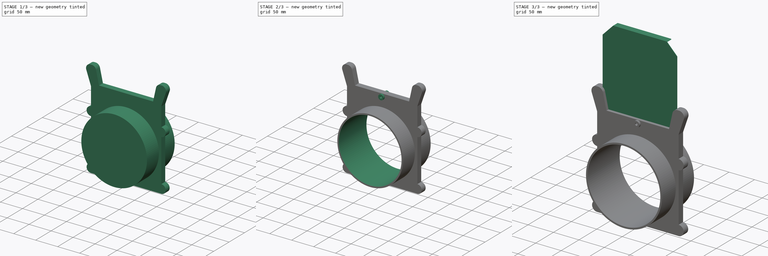
[diagram: build sequence overview — one tinted view per stage of 3, left to right]
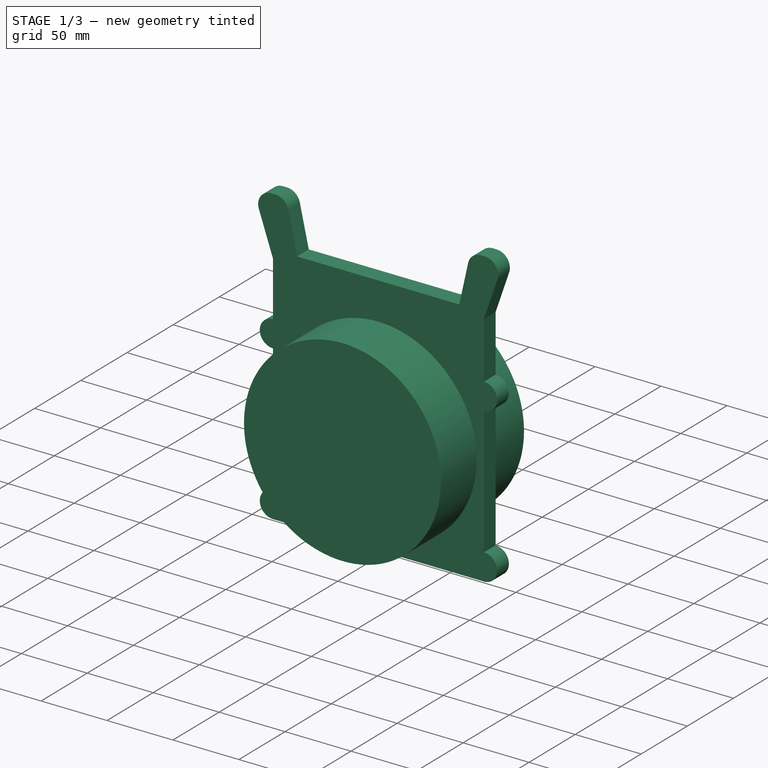
[diagram: stage 1 of 3 — iso view after this stage's code; geometry added in this stage tinted green]
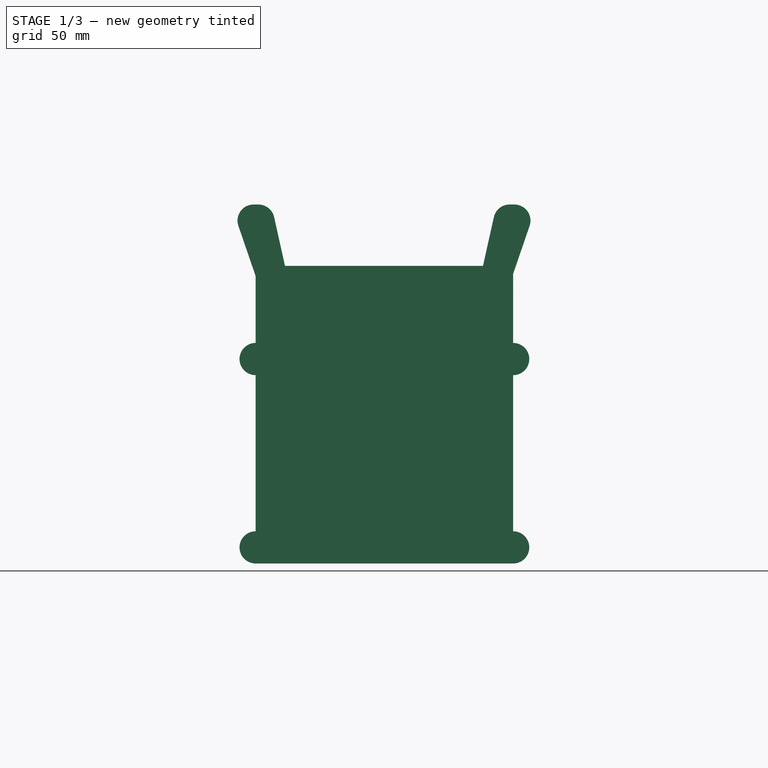
[diagram: stage 1 of 3 — front view after this stage's code; geometry added in this stage tinted green]
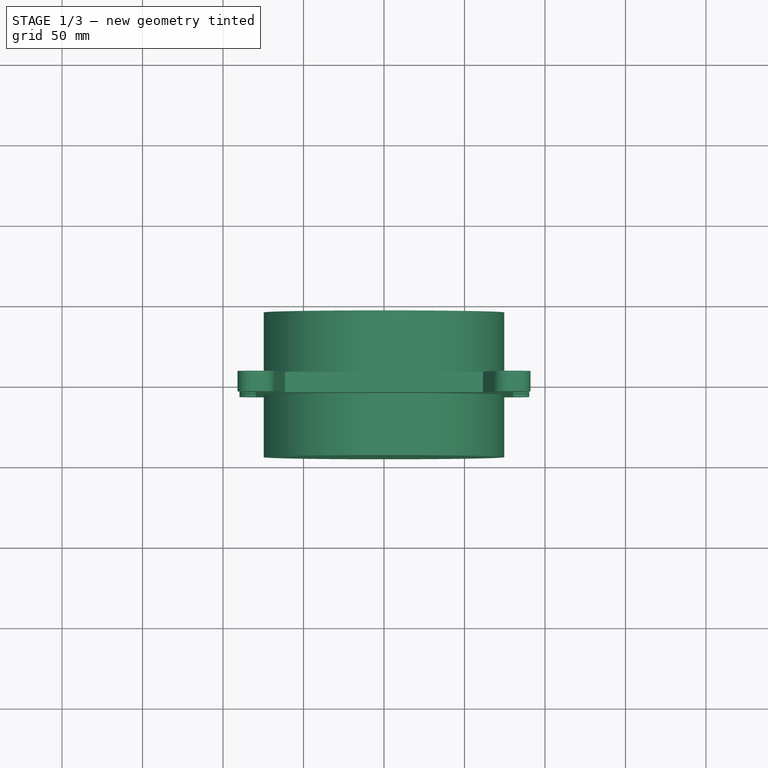
[diagram: stage 1 of 3 — top view after this stage's code; geometry added in this stage tinted green]
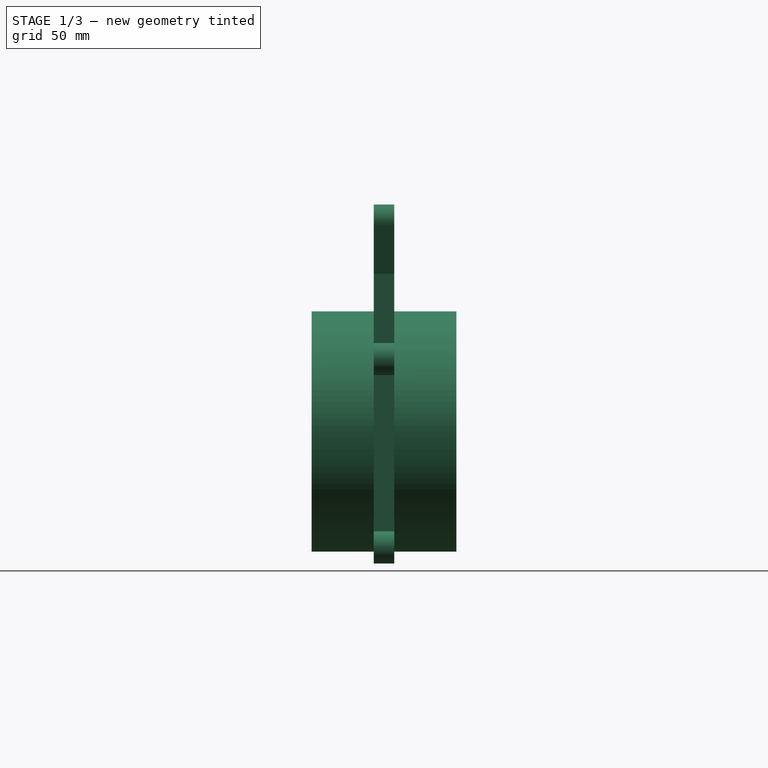
[diagram: stage 1 of 3 — right view after this stage's code; geometry added in this stage tinted green]
FCSTD DOCUMENT  (FreeCAD 1.1R40971 (Git))
Label: blastgate
License: All rights reserved
LicenseURL: http://en.wikipedia.org/wiki/All_rights_reserved
objects: Sketcher::SketchObject×7, PartDesign::Pad×4, PartDesign::Pocket×3, PartDesign::Body×1, App::Point×1
note: 36 computed .brp shape members not serialized (recipe doc carries the construction recipe); baked Part::Feature solids carry a one-line shape summary decoded from their .brp

FEATURE [Sketcher::SketchObject] Sketch  label="sbody"
  ArcFitTolerance = 0
  AttachmentSupport = -> [XZ_Plane]
  ExternalTypes = [0]
  FullyConstrained = true
  MakeInternals = false
  MapMode = 5
  Placement = pos=(0,0,0) rot=(1,0,0;1.5708rad)
  sketch-geometry (27):
    g0: LineSegment StartX=-68.2548 StartY=133.177 StartZ=0 EndX=-61.5 EndY=102.9 EndZ=0
    g1: LineSegment StartX=-61.5 StartY=102.9 StartZ=0 EndX=61.5 EndY=102.9 EndZ=0
    g2: LineSegment StartX=61.5 StartY=102.9 StartZ=0 EndX=68.2548 EndY=133.177 EndZ=0
    g3: LineSegment StartX=78.0149 StartY=141 StartZ=0 EndX=80.9974 EndY=141 EndZ=0
    g4: LineSegment StartX=90.4563 StartY=127.755 StartZ=0 EndX=80.2487 EndY=98 EndZ=0
    g5: LineSegment StartX=80.2487 StartY=98 StartZ=0 EndX=80.2487 EndY=55 EndZ=0
    g6: LineSegment StartX=80.2487 StartY=-82 StartZ=0 EndX=-79.7513 EndY=-82 EndZ=0
    g7: LineSegment StartX=-79.7513 StartY=-62 StartZ=0 EndX=-79.7513 EndY=35 EndZ=0
    g8: LineSegment StartX=-79.7513 StartY=96.55 StartZ=0 EndX=-90.4563 EndY=127.755 EndZ=0
    g9: LineSegment StartX=-80.9974 StartY=141 StartZ=0 EndX=-78.0149 EndY=141 EndZ=0
    g10: Circle [constr] CenterX=0 CenterY=0 CenterZ=0 NormalX=0 NormalY=0 NormalZ=1 AngleXU=0 Radius=71
    g11: GeomPoint [constr] X=0 Y=-71 Z=0
    g12: ArcOfCircle CenterX=-79.7513 CenterY=-72 CenterZ=0 NormalX=0 NormalY=0 NormalZ=1 AngleXU=0 Radius=10 StartAngle=1.5708 EndAngle=4.71239
    g13: ArcOfCircle CenterX=80.2487 CenterY=-72 CenterZ=0 NormalX=0 NormalY=0 NormalZ=1 AngleXU=0 Radius=10 StartAngle=4.71239 EndAngle=7.85398
    g14: ArcOfCircle CenterX=-79.7513 CenterY=45 CenterZ=0 NormalX=0 NormalY=0 NormalZ=1 AngleXU=0 Radius=10 StartAngle=1.5708 EndAngle=4.71239
    g15: ArcOfCircle CenterX=80.2487 CenterY=45 CenterZ=0 NormalX=0 NormalY=0 NormalZ=1 AngleXU=0 Radius=10 StartAngle=4.71239 EndAngle=7.85398
    g16: LineSegment StartX=80.2487 StartY=35 StartZ=0 EndX=80.2487 EndY=-62 EndZ=0
    g17: LineSegment StartX=-79.7513 StartY=55 StartZ=0 EndX=-79.7513 EndY=96.55 EndZ=0
    g18: ArcOfCircle CenterX=-80.9974 CenterY=131 CenterZ=0 NormalX=0 NormalY=0 NormalZ=1 AngleXU=0 Radius=10 StartAngle=1.5708 EndAngle=3.47206
    g19: GeomPoint [constr] X=-95 Y=141 Z=0
    g20: ArcOfCircle CenterX=80.9974 CenterY=131 CenterZ=0 NormalX=0 NormalY=0 NormalZ=1 AngleXU=0 Radius=10 StartAngle=5.95271 EndAngle=7.85398
    g21: GeomPoint [constr] X=95 Y=141 Z=0
    g22: ArcOfCircle CenterX=-78.0149 CenterY=131 CenterZ=0 NormalX=0 NormalY=0 NormalZ=1 AngleXU=0 Radius=10 StartAngle=0.219503 EndAngle=1.5708
    g23: GeomPoint [constr] X=-70 Y=141 Z=0
    g24: ArcOfCircle CenterX=78.0149 CenterY=131 CenterZ=0 NormalX=0 NormalY=0 NormalZ=1 AngleXU=0 Radius=10 StartAngle=1.5708 EndAngle=2.92209
    g25: GeomPoint [constr] X=70 Y=141 Z=0
    g26: Circle [constr] CenterX=0 CenterY=0 CenterZ=0 NormalX=0 NormalY=0 NormalZ=1 AngleXU=0 Radius=74.6125
  constraints (69):
    c: Coincident(g0,g1)
    c: Coincident(g1,g2)
    c: Horizontal(g3)
    c: Coincident(g4,g5)
    c: Vertical(g5)
    c: Vertical(g7)
    c: Coincident(g17,g8)
    c: Diameter(g10) = 142
    c: Coincident(g10,g-1)
    c: DistanceX(g6,g6) = 160
    c: DistanceY(g6,g23) = 223
    c: Horizontal(g9)
    c: DistanceX(g23,g25) = 140
    c: Symmetric(g25,g23,g-2)
    c: DistanceY(g0,g23) = 38.1
    c: DistanceX(g19,g21) = 190
    c: PointOnObject(g11,g10)
    c: PointOnObject(g11,g-2)
    c: DistanceY(g6,g11) = 11
    c: DistanceY(g6,g4) = 180
    c: Symmetric(g1,g0,g-2)
    c: Diameter(g12) = 20
    c: Equal(g13,g12)
    c: PointOnObject(g14,g7)
    c: PointOnObject(g15,g5)
    c: Equal(g12,g14)
    c: Equal(g14,g15)
    c: DistanceY(g12,g14) = 117
    c: Tangent(g12,g6) = 1.5708
    c: Coincident(g7,g12)
    c: Tangent(g13,g6) = 1.5708
    c: Coincident(g16,g13)
    c: Coincident(g5,g15)
    c: Coincident(g16,g15)
    c: Coincident(g14,g7)
    c: Coincident(g14,g17)
    c: Horizontal(g15,g14)
    c: PointOnObject(g19,g8)
    c: PointOnObject(g19,g9)
    c: Tangent(g8,g18) = 1.5708
    c: Tangent(g9,g18) = 1.5708
    c: PointOnObject(g21,g4)
    c: PointOnObject(g21,g3)
    c: Tangent(g4,g20) = 1.5708
    c: Tangent(g3,g20) = 1.5708
    c: Equal(g20,g18)
    c: Radius(g20) = 10
    c: DistanceX(g1,g1) = 123
    c: PointOnObject(g23,g9)
    c: PointOnObject(g23,g0)
    c: Tangent(g9,g22) = 1.5708
    c: Tangent(g0,g22) = 1.5708
    c: PointOnObject(g25,g3)
    c: PointOnObject(g25,g2)
    c: Tangent(g3,g24) = 1.5708
    c: Tangent(g2,g24) = 1.5708
    c: Equal(g24,g20)
    c: Equal(g20,g22)
    c: DistanceY(g8,g9) = 44.45
    c: Symmetric(g8,g4,g-2)
    c: Horizontal(g6)
    c: Perpendicular(g13,g16)
    c: Perpendicular(g12,g7)
    c: Vertical(g17)
    c: PointOnObject(g14,g7)
    c: PointOnObject(g5,g16)
    c: Equal(g7,g16)
    c: Coincident(g26,g10)
    c: Diameter(g26) = 149.225
FEATURE [PartDesign::Pad] Pad
  Direction = (0,-1,2e-16)
  Length = 12.7
  Length2 = 10
  Midplane = true
  Placement = pos=(0,0,0) rot=(1,0,0;1.5708rad)
  Profile = -> Sketch
  ReferenceAxis = -> Sketch [N_Axis]
  Suppressed = false
  Type = 0
FEATURE [Sketcher::SketchObject] Sketch001  label="scollar"
  ArcFitTolerance = 0
  ExternalTypes = [0]
  FullyConstrained = true
  MakeInternals = false
  MapMode = 5
  Placement = pos=(0,0,0) rot=(1,0,0;1.5708rad)
  expr: Constraints[2] = 5.88 in
  sketch-geometry (2):
    g0: Circle [constr] CenterX=0 CenterY=0 CenterZ=0 NormalX=0 NormalY=0 NormalZ=1 AngleXU=0 Radius=71.4375
    g1: Circle CenterX=0 CenterY=0 CenterZ=0 NormalX=0 NormalY=0 NormalZ=1 AngleXU=0 Radius=74.676
  constraints (4):
    c: Coincident(g0,g-1)
    c: Coincident(g1,g0)
    c: Diameter(g1) = 149.352
    c: Diameter(g0) = 142.875
FEATURE [PartDesign::Pad] Pad001
  BaseFeature = -> Pad
  Direction = (0,-1,2e-16)
  Length = 89.916
  Length2 = 10
  Midplane = true
  Placement = pos=(0,0,0) rot=(1,0,0;1.5708rad)
  Profile = -> Sketch001
  ReferenceAxis = -> Sketch001 [N_Axis]
  Suppressed = false
  Type = 0
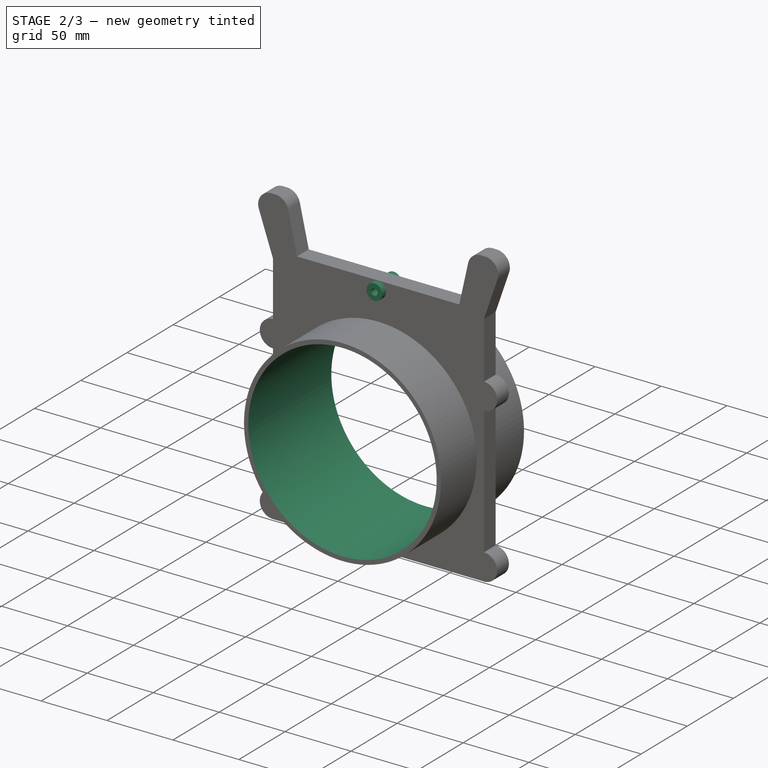
[diagram: stage 2 of 3 — iso view after this stage's code; geometry added in this stage tinted green]
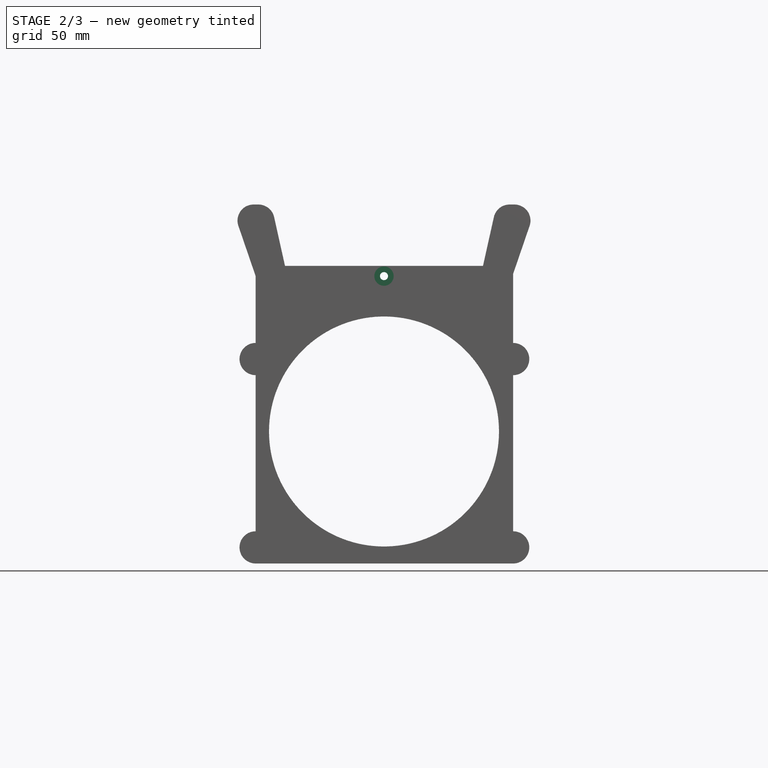
[diagram: stage 2 of 3 — front view after this stage's code; geometry added in this stage tinted green]
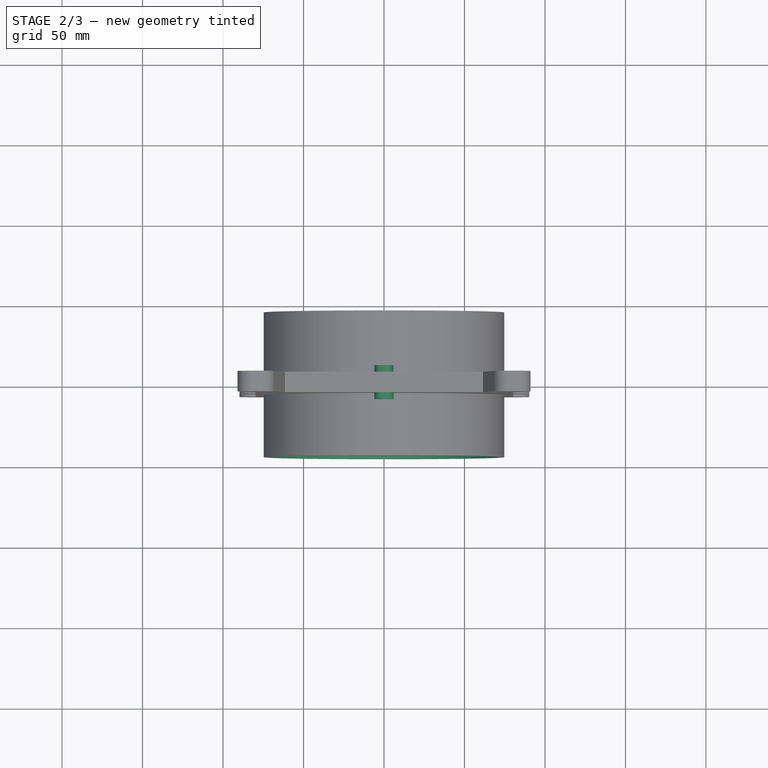
[diagram: stage 2 of 3 — top view after this stage's code; geometry added in this stage tinted green]
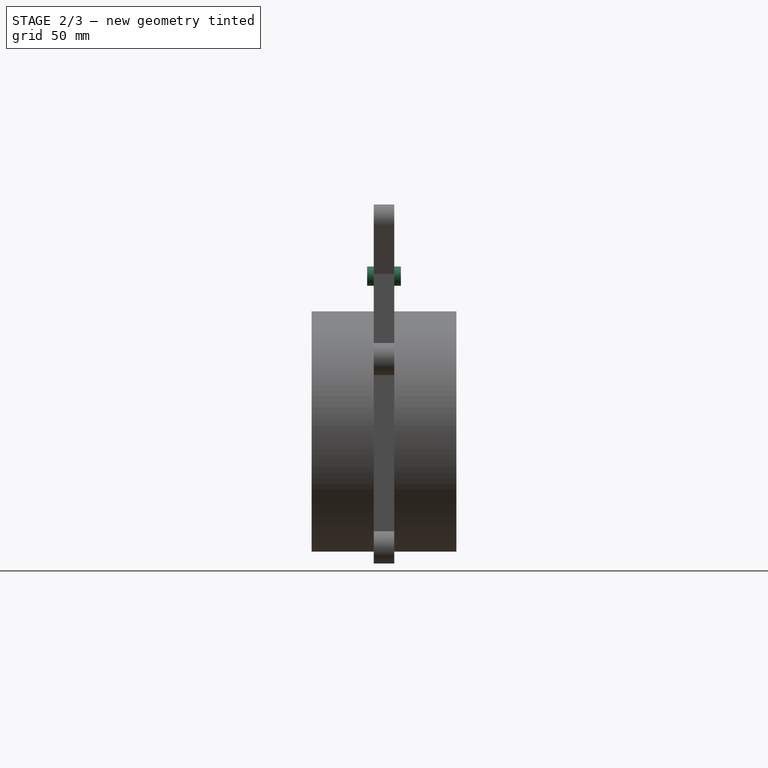
[diagram: stage 2 of 3 — right view after this stage's code; geometry added in this stage tinted green]
FEATURE [Sketcher::SketchObject] Sketch002  label="sboss"
  ArcFitTolerance = 0
  ExternalTypes = [0]
  FullyConstrained = true
  MakeInternals = false
  MapMode = 3
  Placement = pos=(0,0,0) rot=(1,0,0;1.5708rad)
  sketch-geometry (2):
    g0: Circle CenterX=0 CenterY=96.52 CenterZ=0 NormalX=0 NormalY=0 NormalZ=1 AngleXU=0 Radius=6
    g1: Circle [constr] CenterX=0 CenterY=96.52 CenterZ=0 NormalX=0 NormalY=0 NormalZ=1 AngleXU=0 Radius=2.5
  constraints (5):
    c: PointOnObject(g0,g-2)
    c: Diameter(g0) = 12
    c: Coincident(g1,g0)
    c: Diameter(g1) = 5
    c: DistanceY(g-1,g0) = 96.52
FEATURE [Sketcher::SketchObject] s_date  label="sgate"
  ArcFitTolerance = 0
  ExternalTypes = [0]
  FullyConstrained = true
  MakeInternals = false
  Placement = pos=(0,0,0) rot=(1,0,0;1.5708rad)
  sketch-geometry (8):
    g0: LineSegment StartX=-52.3875 StartY=254 StartZ=0 EndX=52.3875 EndY=254 EndZ=0
    g1: LineSegment StartX=-52.3875 StartY=254 StartZ=0 EndX=-73.025 EndY=232.664 EndZ=0
    g2: LineSegment StartX=52.3875 StartY=254 StartZ=0 EndX=73.025 EndY=232.664 EndZ=0
    g3: LineSegment StartX=-73.025 StartY=232.664 StartZ=0 EndX=-98.425 EndY=232.664 EndZ=0
    g4: LineSegment StartX=-98.425 StartY=232.664 StartZ=0 EndX=-98.425 EndY=283.464 EndZ=0
    g5: LineSegment StartX=-98.425 StartY=283.464 StartZ=0 EndX=98.425 EndY=283.464 EndZ=0
    g6: LineSegment StartX=98.425 StartY=283.464 StartZ=0 EndX=98.425 EndY=232.664 EndZ=0
    g7: LineSegment StartX=98.425 StartY=232.664 StartZ=0 EndX=73.025 EndY=232.664 EndZ=0
  constraints (23):
    c: Coincident(g0,g1)
    c: Coincident(g0,g2)
    c: DistanceY(g-1,g0) = 254
    c: DistanceX(g1,g2) = 146.05
    c: Equal(g2,g1)
    c: Symmetric(g2,g1,g-2)
    c: Horizontal(g0)
    c: DistanceX(g0,g0) = 104.775
    c: Coincident(g1,g3)
    c: Horizontal(g3)
    c: Coincident(g3,g4)
    c: Vertical(g4)
    c: Coincident(g4,g5)
    c: Coincident(g5,g6)
    c: Coincident(g6,g7)
    c: Coincident(g7,g2)
    c: Horizontal(g7)
    c: Horizontal(g5)
    c: Vertical(g6)
    c: Equal(g3,g7)
    c: DistanceX(g7,g7) = 25.4
    c: DistanceY(g-1,g2) = 232.664
    c: DistanceY(g6,g6) = 50.8
FEATURE [Sketcher::SketchObject] Sketch003  label="sthru"
  ArcFitTolerance = 0
  ExternalTypes = [0]
  FullyConstrained = true
  MakeInternals = false
  MapMode = 5
  Placement = pos=(0,0,0) rot=(1,0,0;1.5708rad)
  expr: Constraints[2] = 5.88 in
  sketch-geometry (2):
    g0: Circle CenterX=0 CenterY=0 CenterZ=0 NormalX=0 NormalY=0 NormalZ=1 AngleXU=0 Radius=71.4375
    g1: Circle [constr] CenterX=0 CenterY=0 CenterZ=0 NormalX=0 NormalY=0 NormalZ=1 AngleXU=0 Radius=74.676
  constraints (4):
    c: Coincident(g0,g-1)
    c: Coincident(g1,g0)
    c: Diameter(g1) = 149.352
    c: Diameter(g0) = 142.875
FEATURE [PartDesign::Pocket] Pocket
  BaseFeature = -> Pad001
  Direction = (0,1,0)
  Length = 5
  Length2 = 5
  Midplane = true
  Placement = pos=(0,0,0) rot=(1,0,0;1.5708rad)
  Profile = -> Sketch003
  ReferenceAxis = -> Sketch003 [N_Axis]
  Suppressed = false
  Type = 1
  UseCustomVector = true
FEATURE [Sketcher::SketchObject] Sketch004  label="sstop"
  ArcFitTolerance = 0
  ExternalTypes = [0]
  FullyConstrained = true
  MakeInternals = false
  MapMode = 3
  Placement = pos=(0,0,0) rot=(1,0,0;1.5708rad)
  sketch-geometry (2):
    g0: Circle [constr] CenterX=0 CenterY=96.52 CenterZ=0 NormalX=0 NormalY=0 NormalZ=1 AngleXU=0 Radius=6
    g1: Circle CenterX=0 CenterY=96.52 CenterZ=0 NormalX=0 NormalY=0 NormalZ=1 AngleXU=0 Radius=2.5
  constraints (5):
    c: PointOnObject(g0,g-2)
    c: Diameter(g0) = 12
    c: Coincident(g1,g0)
    c: Diameter(g1) = 5
    c: DistanceY(g-1,g0) = 96.52
FEATURE [PartDesign::Pad] Pad002
  BaseFeature = -> Pocket
  Direction = (0,-1,2e-16)
  Length = 21
  Length2 = 10
  Midplane = true
  Placement = pos=(0,0,0) rot=(1,0,0;1.5708rad)
  Profile = -> Sketch002
  ReferenceAxis = -> Sketch002 [N_Axis]
  Suppressed = false
  Type = 0
FEATURE [PartDesign::Pocket] Pocket001
  BaseFeature = -> Pad002
  Direction = (0,1,-2e-16)
  Length = 5
  Length2 = 5
  Midplane = true
  Placement = pos=(0,0,0) rot=(1,0,0;1.5708rad)
  Profile = -> Sketch004
  ReferenceAxis = -> Sketch004 [N_Axis]
  Suppressed = false
  Type = 1
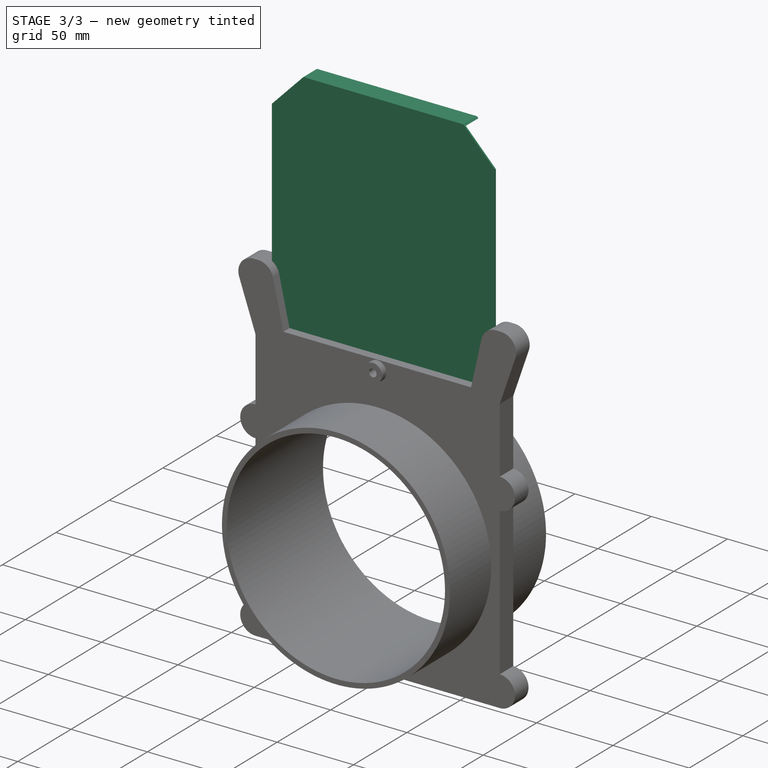
[diagram: stage 3 of 3 — iso view after this stage's code; geometry added in this stage tinted green]
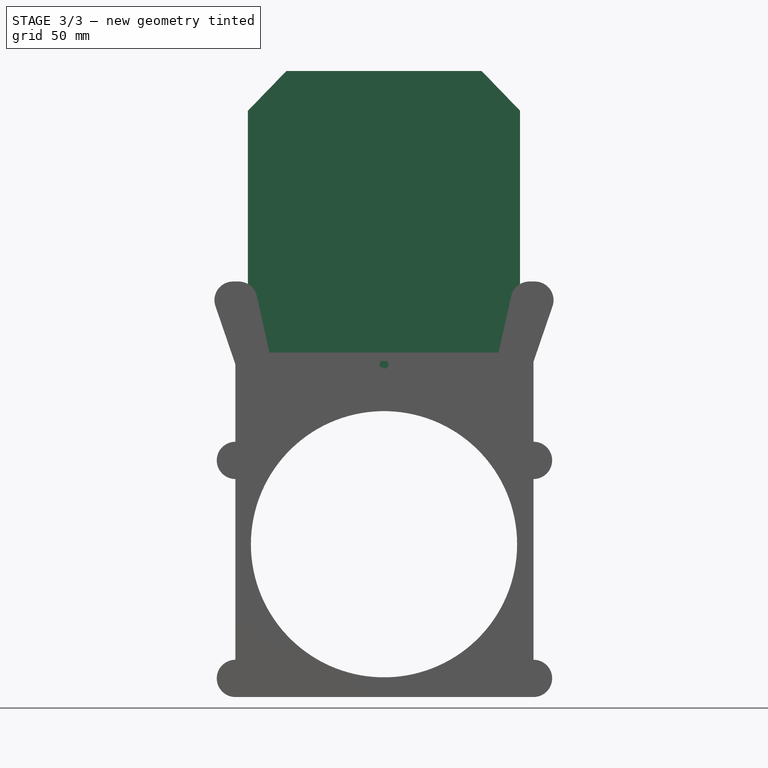
[diagram: stage 3 of 3 — front view after this stage's code; geometry added in this stage tinted green]
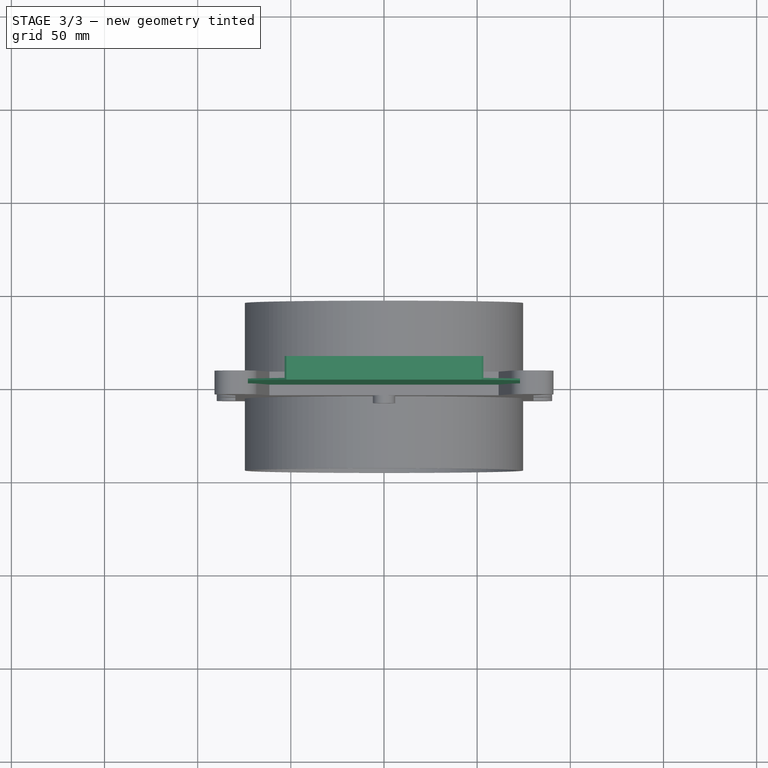
[diagram: stage 3 of 3 — top view after this stage's code; geometry added in this stage tinted green]
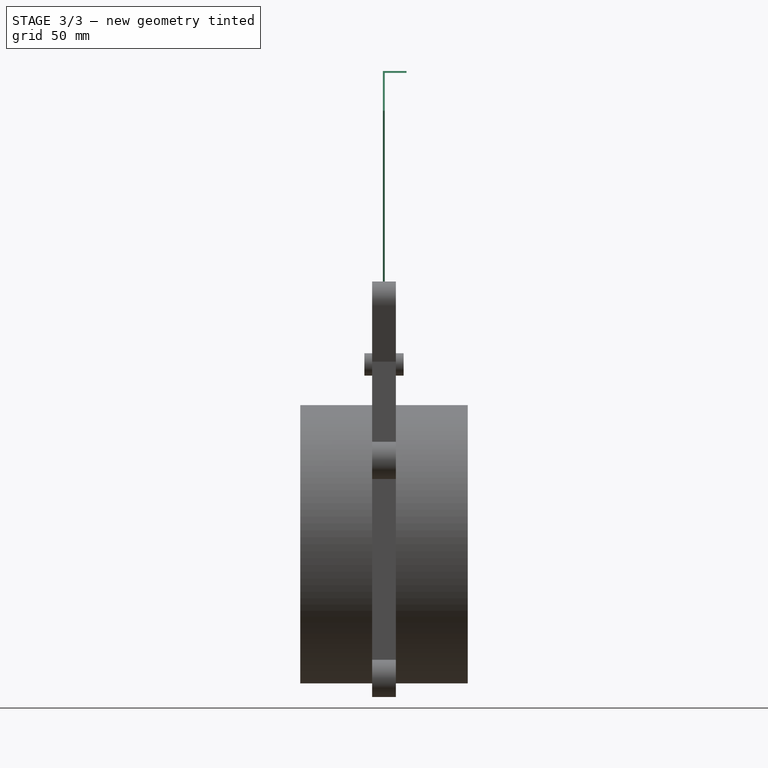
[diagram: stage 3 of 3 — right view after this stage's code; geometry added in this stage tinted green]
FEATURE [Sketcher::SketchObject] Sketch005
  ArcFitTolerance = 0
  AttachmentSupport = -> [s_date]
  ExternalTypes = [0]
  FullyConstrained = false
  MakeInternals = false
  MapMode = 4
  Placement = pos=(0,0,0) rot=(0.707107,0,0.707107;3.14159rad)
  sketch-geometry (6):
    g0: LineSegment StartX=76.2 StartY=0.603403 StartZ=0 EndX=254 EndY=0.603403 EndZ=0
    g1: LineSegment StartX=254 StartY=0.603403 StartZ=0 EndX=254 EndY=-12.0966 EndZ=0
    g2: LineSegment StartX=254 StartY=-12.0966 StartZ=0 EndX=253 EndY=-12.0966 EndZ=0
    g3: LineSegment StartX=253 StartY=-12.0966 StartZ=0 EndX=253 EndY=-0.396597 EndZ=0
    g4: LineSegment StartX=253 StartY=-0.396597 StartZ=0 EndX=76.2 EndY=-0.396597 EndZ=0
    g5: LineSegment StartX=76.2 StartY=-0.396597 StartZ=0 EndX=76.2 EndY=0.603403 EndZ=0
  constraints (17):
    c: Horizontal(g0)
    c: Coincident(g0,g1)
    c: Coincident(g1,g2)
    c: Coincident(g2,g3)
    c: Coincident(g3,g4)
    c: Horizontal(g4)
    c: Coincident(g4,g5)
    c: Coincident(g5,g0)
    c: Vertical(g5)
    c: Vertical(g3)
    c: Vertical(g1)
    c: Horizontal(g2)
    c: DistanceX(g2,g2) = 1
    c: DistanceX(g-1,g0) = 254
    c: DistanceY(g1,g1) = 12.7
    c: Equal(g5,g2)
    c: DistanceX(g-1,g0) = 76.2
FEATURE [PartDesign::Pad] Pad003
  BaseFeature = -> Pocket001
  Direction = (1,0,-2e-16)
  Length = 146.05
  Length2 = 10
  Midplane = true
  Placement = pos=(0,0,0) rot=(1,0,0;1.5708rad)
  Profile = -> Sketch005
  ReferenceAxis = -> Sketch005 [N_Axis]
  Suppressed = false
  Type = 0
FEATURE [PartDesign::Pocket] Pocket002
  BaseFeature = -> Pad003
  Direction = (0,1,-2e-16)
  Length = 5
  Length2 = 5
  Midplane = true
  Placement = pos=(0,0,0) rot=(1,0,0;1.5708rad)
  Profile = -> s_date
  ReferenceAxis = -> s_date [N_Axis]
  Suppressed = false
  Type = 1
FEATURE [PartDesign::Body] Body
  AllowCompound = false
  Group = -> [Sketch,Pad,Sketch001,Pad001,Sketch002,s_date,Sketch003,Pocket,Sketch004,Pad002,Pocket001,Sketch005,Pad003,Pocket002]
  Origin = -> Origin
  Tip = -> Pocket002
FEATURE [App::Point] Origin001  label="Origin"
  Role = Origin
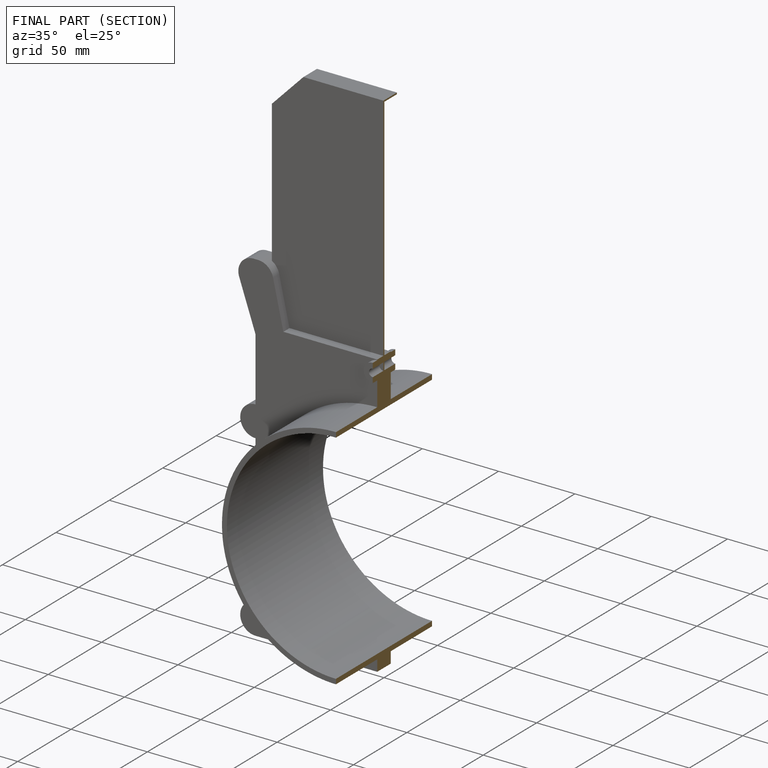
[diagram: finished part — half-section view (interior)]
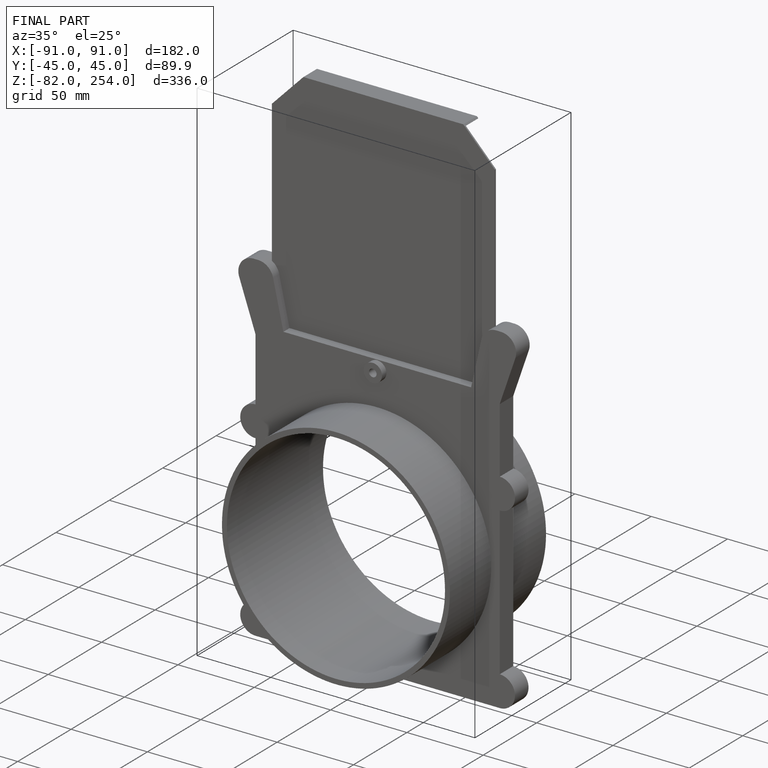
[diagram: finished part — iso view with bounding-box wireframe]
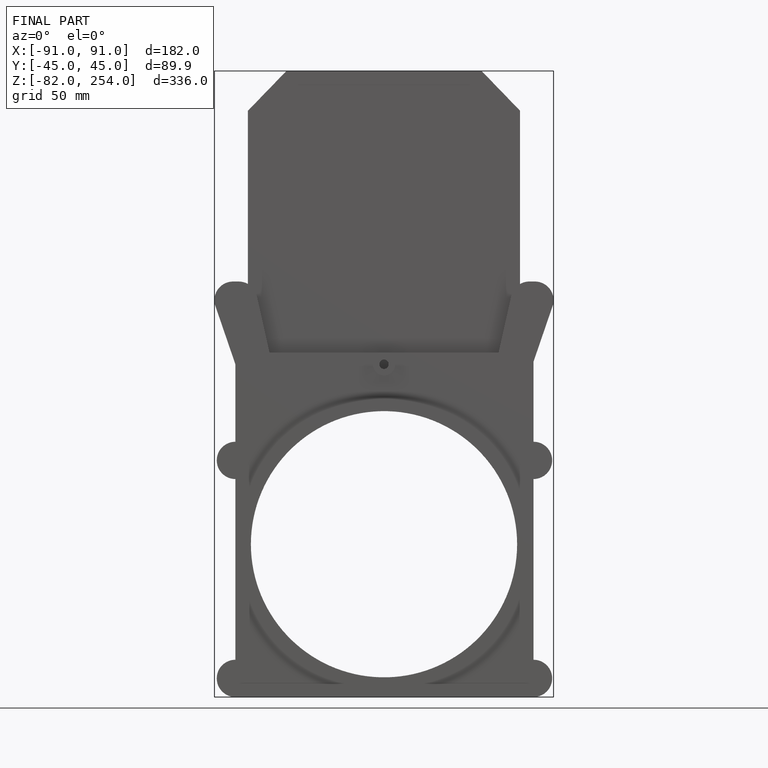
[diagram: finished part — front view with bounding-box wireframe]
